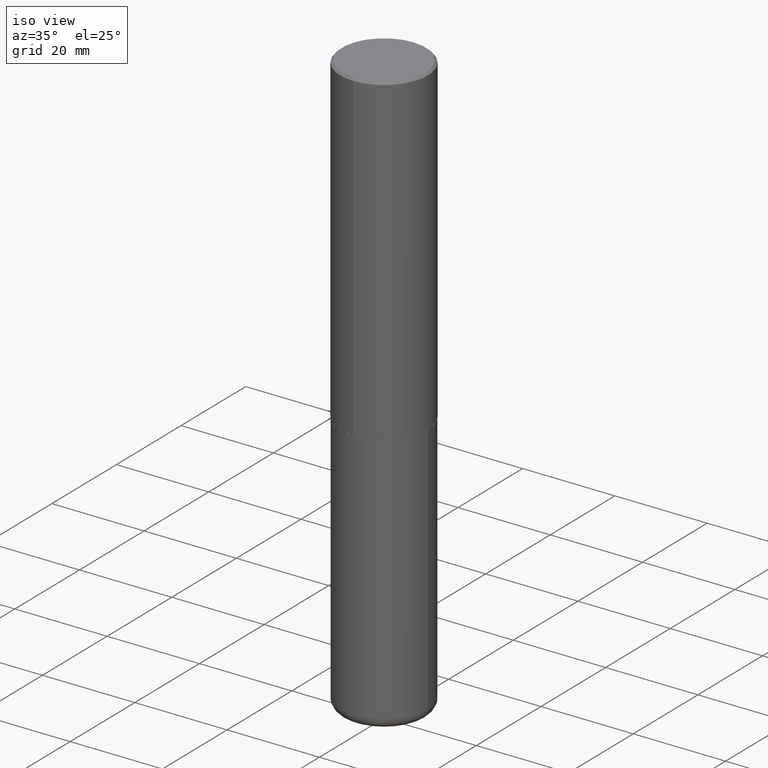
[diagram: clean part render]
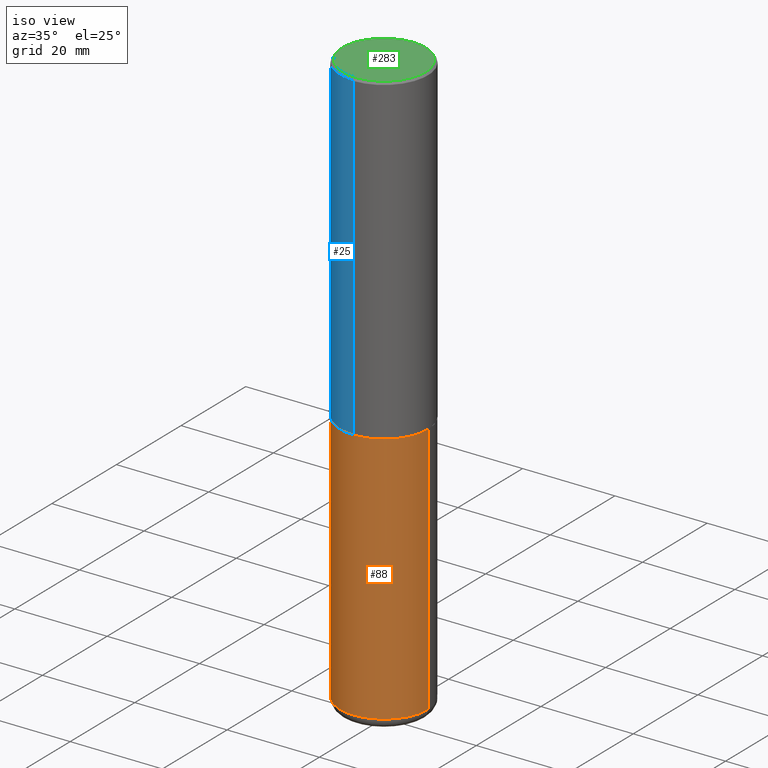
[diagram: same view with three faces highlighted in distinct colors, each labeled with its STEP entity id]
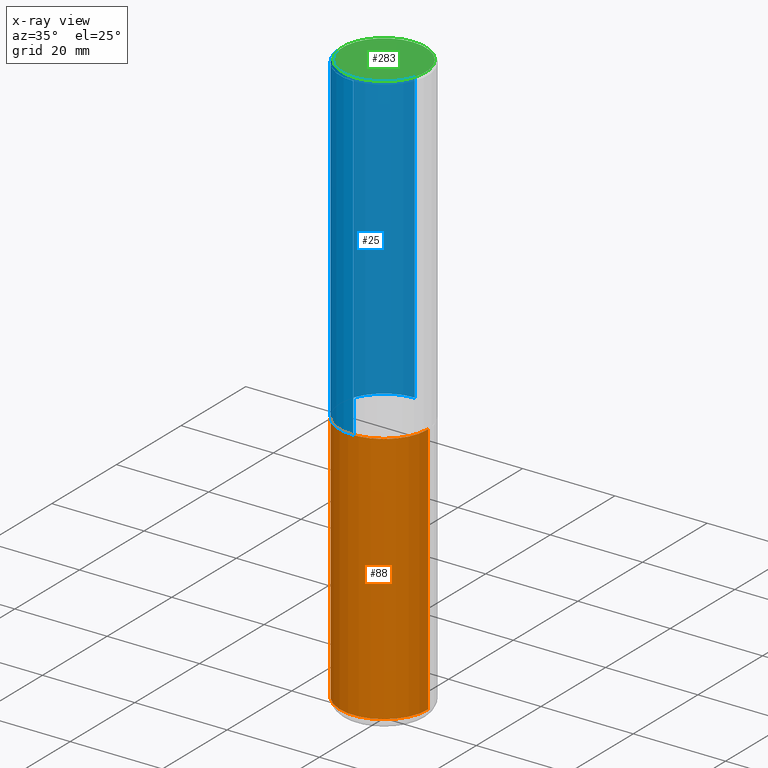
[diagram: x-ray of the same camera — body ghosted, the three highlighted faces saturated]
A machine part, iso view with three faces highlighted in distinct colors.
The next image is the same camera in x-ray (body ghosted, the three faces saturated) — at least one of them is partly hidden behind the body in this view.
Their STEP definitions:

[orange] entity #88 — the highlighted cylindrical surface (partial cylindrical patch) has radius 9.525 mm, axis along (-0, 0, 1).
#2 = DIRECTION ( 'NONE',  ( -2.445468806185136597E-29, 3.491481338843145583E-15, 1.000000000000000000 ) ) ;
#11 = AXIS2_PLACEMENT_3D ( 'NONE', #247, #274, #376 ) ;
#32 = FACE_OUTER_BOUND ( 'NONE', #350, .T. ) ;
#40 = ORIENTED_EDGE ( 'NONE', *, *, #172, .T. ) ;
#42 = CARTESIAN_POINT ( 'NONE',  ( -0.3749999999999999445, -1.447863811461947092E-14, -4.910000000000000142 ) ) ;
#47 = VERTEX_POINT ( 'NONE', #165 ) ;
#48 = EDGE_CURVE ( 'NONE', #190, #250, #195, .T. ) ;
#61 = CYLINDRICAL_SURFACE ( 'NONE', #202, 0.3749999999999999445 ) ;
#87 = VECTOR ( 'NONE', #115, 39.37007874015748143 ) ;
#88 = ADVANCED_FACE ( 'NONE', ( #32 ), #61, .T. ) ;
#115 = DIRECTION ( 'NONE',  ( -2.445468806185136877E-29, 3.491481338843145188E-15, 1.000000000000000000 ) ) ;
#130 = DIRECTION ( 'NONE',  ( -2.445468806185136597E-29, 3.491481338843145583E-15, 1.000000000000000000 ) ) ;
#134 = DIRECTION ( 'NONE',  ( 1.000000000000000000, -6.982962677686266711E-15, 4.876176775795935793E-29 ) ) ;
#135 = CARTESIAN_POINT ( 'NONE',  ( -0.3750000000000000555, -1.070783826866887333E-14, -2.750000000000000000 ) ) ;
#159 = DIRECTION ( 'NONE',  ( -2.445468806185136877E-29, 3.491481338843145188E-15, 1.000000000000000000 ) ) ;
#165 = CARTESIAN_POINT ( 'NONE',  ( 0.3749999999999999445, -1.976178437785219664E-14, -4.910000000000000142 ) ) ;
#172 = EDGE_CURVE ( 'NONE', #190, #47, #296, .T. ) ;
#190 = VERTEX_POINT ( 'NONE', #42 ) ;
#195 = LINE ( 'NONE', #360, #210 ) ;
#202 = AXIS2_PLACEMENT_3D ( 'NONE', #291, #2, #134 ) ;
#210 = VECTOR ( 'NONE', #159, 39.37007874015748143 ) ;
#219 = CARTESIAN_POINT ( 'NONE',  ( 0.3749999999999999445, -2.618611004132349622E-15, 1.828566290923475642E-29 ) ) ;
#224 = ORIENTED_EDGE ( 'NONE', *, *, #388, .F. ) ;
#235 = CARTESIAN_POINT ( 'NONE',  ( 0.3750000000000000555, -1.222018468595100145E-14, -2.750000000000000000 ) ) ;
#247 = CARTESIAN_POINT ( 'NONE',  ( 6.725039217009124520E-29, -9.601573681818649859E-15, -2.750000000000000000 ) ) ;
#249 = LINE ( 'NONE', #219, #87 ) ;
#250 = VERTEX_POINT ( 'NONE', #135 ) ;
#274 = DIRECTION ( 'NONE',  ( -2.445468806185136597E-29, 3.491481338843145583E-15, 1.000000000000000000 ) ) ;
#276 = CIRCLE ( 'NONE', #11, 0.3750000000000000555 ) ;
#291 = CARTESIAN_POINT ( 'NONE',  ( 0.000000000000000000, 0.000000000000000000, 0.000000000000000000 ) ) ;
#296 = CIRCLE ( 'NONE', #324, 0.3749999999999999445 ) ;
#316 = VERTEX_POINT ( 'NONE', #235 ) ;
#324 = AXIS2_PLACEMENT_3D ( 'NONE', #417, #130, #372 ) ;
#338 = ORIENTED_EDGE ( 'NONE', *, *, #48, .F. ) ;
#350 = EDGE_LOOP ( 'NONE', ( #338, #40, #408, #224 ) ) ;
#360 = CARTESIAN_POINT ( 'NONE',  ( -0.3749999999999999445, 2.664535259100375303E-15, -1.844600658845589318E-29 ) ) ;
#365 = EDGE_CURVE ( 'NONE', #47, #316, #249, .T. ) ;
#372 = DIRECTION ( 'NONE',  ( 1.000000000000000000, -6.982962677686269077E-15, 0.000000000000000000 ) ) ;
#376 = DIRECTION ( 'NONE',  ( 1.000000000000000000, -6.982962677686266711E-15, 0.000000000000000000 ) ) ;
#388 = EDGE_CURVE ( 'NONE', #250, #316, #276, .T. ) ;
#408 = ORIENTED_EDGE ( 'NONE', *, *, #365, .T. ) ;
#417 = CARTESIAN_POINT ( 'NONE',  ( 1.200725183836902132E-28, -1.714317337371984662E-14, -4.910000000000000142 ) ) ;

[blue] entity #25 — the highlighted cylindrical surface (partial cylindrical patch) has radius 9.525 mm, axis along (-0, 0, 1).
#10 = ORIENTED_EDGE ( 'NONE', *, *, #194, .F. ) ;
#14 = DIRECTION ( 'NONE',  ( -2.446040391741596606E-29, 3.490662795793665557E-15, 1.000000000000000000 ) ) ;
#25 = ADVANCED_FACE ( 'NONE', ( #167 ), #387, .T. ) ;
#27 = CIRCLE ( 'NONE', #123, 0.3750000000000000555 ) ;
#49 = CARTESIAN_POINT ( 'NONE',  ( -2.572686749164323547E-15, -0.3750000000000001110, -0.01999999999999877570 ) ) ;
#62 = CARTESIAN_POINT ( 'NONE',  ( 6.724165036897648492E-29, -9.595832025636787455E-15, -2.749000000000000110 ) ) ;
#64 = LINE ( 'NONE', #322, #168 ) ;
#79 = CARTESIAN_POINT ( 'NONE',  ( 2.664535259100411196E-15, 0.3749999999999907296, -2.749000000000000998 ) ) ;
#89 = CARTESIAN_POINT ( 'NONE',  ( 2.664535259100376880E-15, 0.3750000000000002220, -1.308998548422625521E-15 ) ) ;
#91 = VERTEX_POINT ( 'NONE', #227 ) ;
#95 = DIRECTION ( 'NONE',  ( -2.446040391741596606E-29, 3.490662795793665557E-15, 1.000000000000000000 ) ) ;
#102 = CARTESIAN_POINT ( 'NONE',  ( -2.618611004132284935E-15, -0.3750000000000099920, -2.748999999999999222 ) ) ;
#116 = AXIS2_PLACEMENT_3D ( 'NONE', #199, #95, #261 ) ;
#117 = VECTOR ( 'NONE', #118, 39.37007874015748143 ) ;
#118 = DIRECTION ( 'NONE',  ( -2.446040391741596606E-29, 3.490662795793665557E-15, 1.000000000000000000 ) ) ;
#122 = ORIENTED_EDGE ( 'NONE', *, *, #153, .T. ) ;
#123 = AXIS2_PLACEMENT_3D ( 'NONE', #243, #14, #179 ) ;
#137 = EDGE_CURVE ( 'NONE', #312, #381, #64, .T. ) ;
#153 = EDGE_CURVE ( 'NONE', #285, #312, #284, .T. ) ;
#155 = LINE ( 'NONE', #89, #117 ) ;
#161 = DIRECTION ( 'NONE',  ( -6.982962677686265922E-15, -1.000000000000000000, 2.913971193241877611E-15 ) ) ;
#167 = FACE_OUTER_BOUND ( 'NONE', #282, .T. ) ;
#168 = VECTOR ( 'NONE', #358, 39.37007874015748143 ) ;
#179 = DIRECTION ( 'NONE',  ( -6.982962677686265922E-15, -1.000000000000000000, 3.494488891895536035E-15 ) ) ;
#184 = ORIENTED_EDGE ( 'NONE', *, *, #137, .T. ) ;
#194 = EDGE_CURVE ( 'NONE', #91, #381, #27, .T. ) ;
#199 = CARTESIAN_POINT ( 'NONE',  ( 0.000000000000000000, 0.000000000000000000, 0.000000000000000000 ) ) ;
#227 = CARTESIAN_POINT ( 'NONE',  ( 2.618611004132350411E-15, 0.3749999999999999445, -0.02000000000000139513 ) ) ;
#243 = CARTESIAN_POINT ( 'NONE',  ( 4.892080783483214581E-31, -6.981325591587361238E-17, -0.02000000000000008715 ) ) ;
#261 = DIRECTION ( 'NONE',  ( -6.982962677686266711E-15, -1.000000000000000000, 3.490662795793665951E-15 ) ) ;
#282 = EDGE_LOOP ( 'NONE', ( #406, #122, #184, #10 ) ) ;
#284 = CIRCLE ( 'NONE', #359, 0.3750000000000003886 ) ;
#285 = VERTEX_POINT ( 'NONE', #79 ) ;
#312 = VERTEX_POINT ( 'NONE', #102 ) ;
#322 = CARTESIAN_POINT ( 'NONE',  ( -2.618611004132351594E-15, -0.3750000000000002220, 1.308998548422625521E-15 ) ) ;
#358 = DIRECTION ( 'NONE',  ( -2.446040391741596606E-29, 3.490662795793665557E-15, 1.000000000000000000 ) ) ;
#359 = AXIS2_PLACEMENT_3D ( 'NONE', #62, #391, #161 ) ;
#381 = VERTEX_POINT ( 'NONE', #49 ) ;
#383 = EDGE_CURVE ( 'NONE', #285, #91, #155, .T. ) ;
#387 = CYLINDRICAL_SURFACE ( 'NONE', #116, 0.3750000000000002220 ) ;
#391 = DIRECTION ( 'NONE',  ( -2.446040391741596606E-29, 3.490662795793665557E-15, 1.000000000000000000 ) ) ;
#406 = ORIENTED_EDGE ( 'NONE', *, *, #383, .F. ) ;

[green] entity #283 — the highlighted planar face has unit normal (0, -0, -1).
#22 = ORIENTED_EDGE ( 'NONE', *, *, #75, .T. ) ;
#30 = CARTESIAN_POINT ( 'NONE',  ( -1.141397163745304909E-45, 1.628849886601155835E-31, 4.666305460853910467E-17 ) ) ;
#75 = EDGE_CURVE ( 'NONE', #217, #90, #344, .T. ) ;
#90 = VERTEX_POINT ( 'NONE', #265 ) ;
#112 = CARTESIAN_POINT ( 'NONE',  ( 2.548781377355487113E-15, 0.3549999999999999822, -1.192522237898212341E-15 ) ) ;
#120 = EDGE_LOOP ( 'NONE', ( #22, #347 ) ) ;
#148 = DIRECTION ( 'NONE',  ( -6.982962677686265922E-15, -1.000000000000000000, 3.490662795793665557E-15 ) ) ;
#166 = DIRECTION ( 'NONE',  ( -2.446040391741596606E-29, 3.490662795793665557E-15, 1.000000000000000000 ) ) ;
#200 = DIRECTION ( 'NONE',  ( 2.446040391741596045E-29, -3.490662795793665557E-15, -1.000000000000000000 ) ) ;
#213 = DIRECTION ( 'NONE',  ( -2.446040391741596606E-29, 3.490662795793665557E-15, 1.000000000000000000 ) ) ;
#217 = VERTEX_POINT ( 'NONE', #112 ) ;
#240 = PLANE ( 'NONE',  #270 ) ;
#257 = AXIS2_PLACEMENT_3D ( 'NONE', #30, #166, #258 ) ;
#258 = DIRECTION ( 'NONE',  ( -6.982962677686265922E-15, -1.000000000000000000, 3.490662795793665557E-15 ) ) ;
#263 = AXIS2_PLACEMENT_3D ( 'NONE', #364, #213, #148 ) ;
#265 = CARTESIAN_POINT ( 'NONE',  ( -2.504081769186608216E-15, -0.3549999999999999822, 1.285848347115290366E-15 ) ) ;
#266 = FACE_OUTER_BOUND ( 'NONE', #120, .T. ) ;
#270 = AXIS2_PLACEMENT_3D ( 'NONE', #367, #200, #393 ) ;
#283 = ADVANCED_FACE ( 'NONE', ( #266 ), #240, .F. ) ;
#302 = EDGE_CURVE ( 'NONE', #90, #217, #416, .T. ) ;
#344 = CIRCLE ( 'NONE', #257, 0.3549999999999999822 ) ;
#347 = ORIENTED_EDGE ( 'NONE', *, *, #302, .T. ) ;
#364 = CARTESIAN_POINT ( 'NONE',  ( -1.141397163745304909E-45, 1.628849886601155835E-31, 4.666305460853910467E-17 ) ) ;
#367 = CARTESIAN_POINT ( 'NONE',  ( 2.478951750578624209E-15, 0.3549999999999999822, -1.215853765202481601E-15 ) ) ;
#393 = DIRECTION ( 'NONE',  ( 6.982962677686265922E-15, 1.000000000000000000, -3.490662795793665557E-15 ) ) ;
#416 = CIRCLE ( 'NONE', #263, 0.3549999999999999822 ) ;